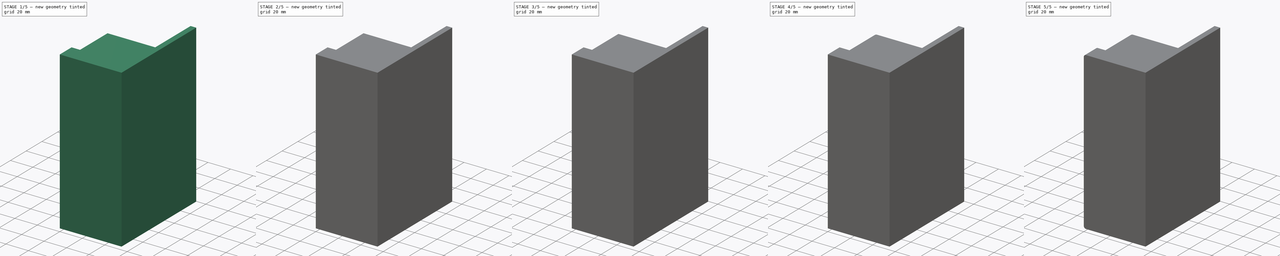
[diagram: build sequence overview — one tinted view per stage of 5, left to right]
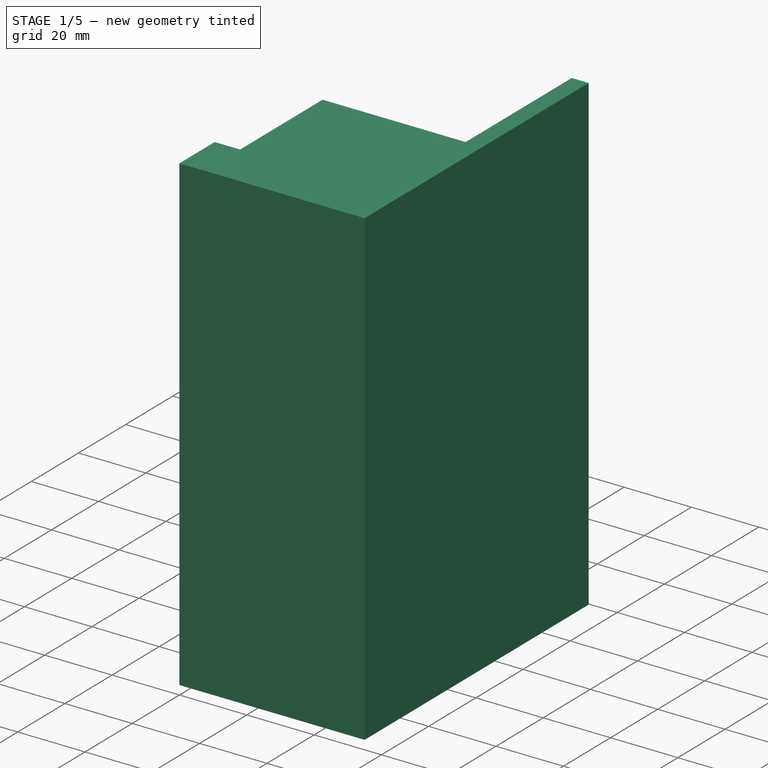
[diagram: stage 1 of 5 — iso view after this stage's code; geometry added in this stage tinted green]
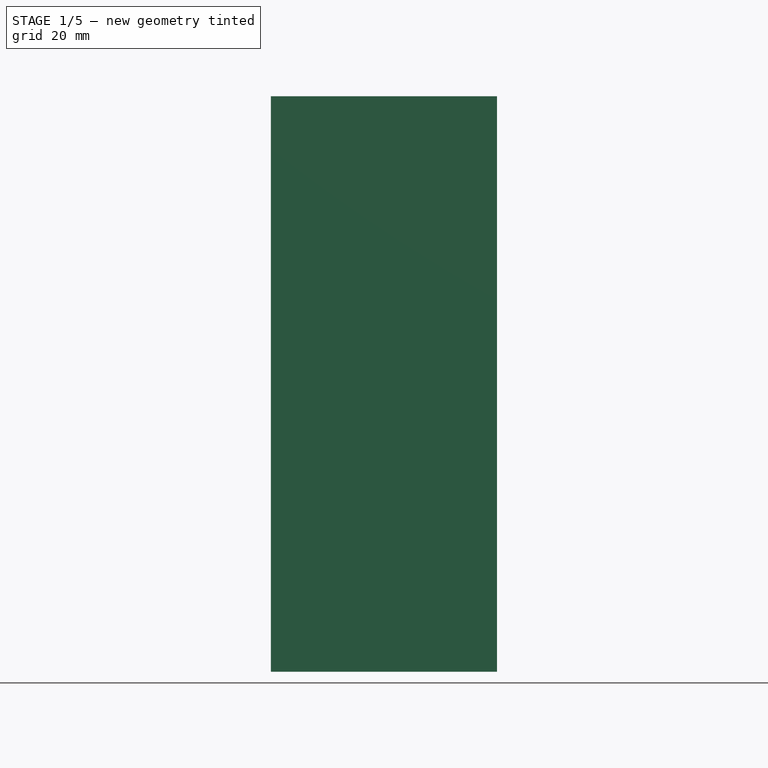
[diagram: stage 1 of 5 — front view after this stage's code; geometry added in this stage tinted green]
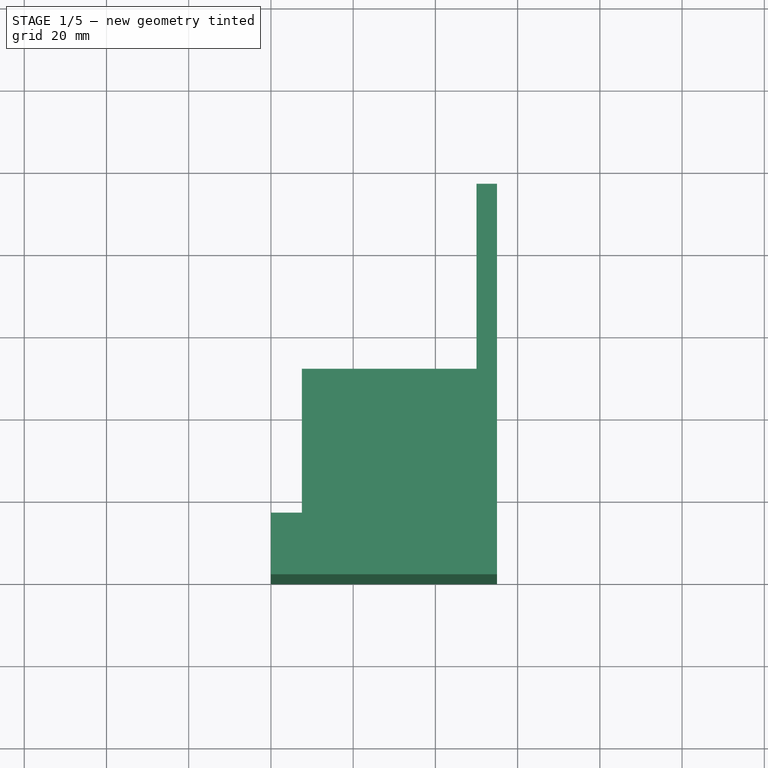
[diagram: stage 1 of 5 — top view after this stage's code; geometry added in this stage tinted green]
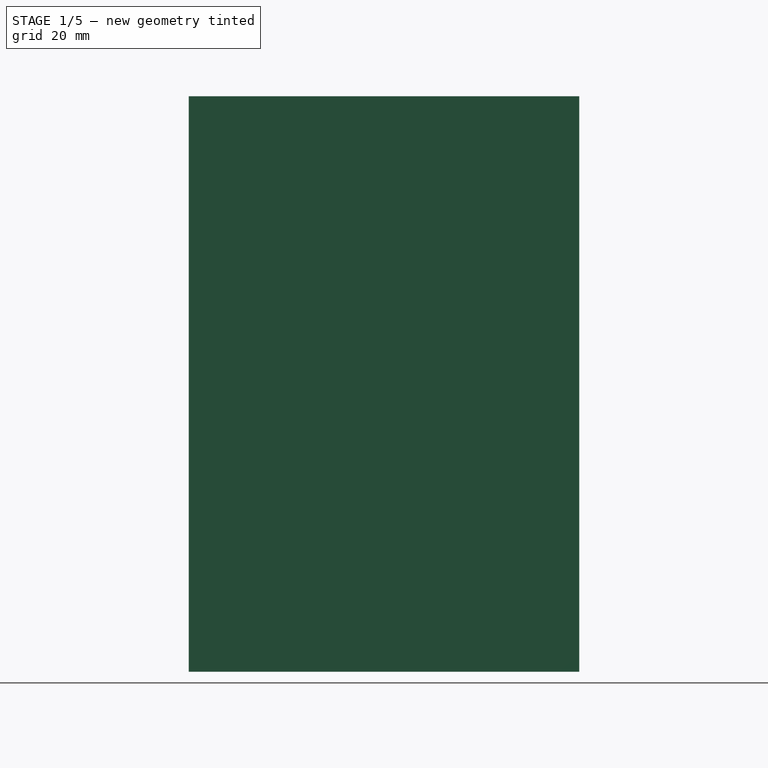
[diagram: stage 1 of 5 — right view after this stage's code; geometry added in this stage tinted green]
FCSTD DOCUMENT  (FreeCAD 0.19R24276 (Git))
Label: PencilCase
License: All rights reserved
LicenseURL: http://en.wikipedia.org/wiki/All_rights_reserved
objects: PartDesign::Fillet×17, Sketcher::SketchObject×6, PartDesign::Pocket×4, PartDesign::Body×2, PartDesign::Chamfer×2, PartDesign::Pad×1, PartDesign::Hole×1
note: 58 computed .brp shape members not serialized (recipe doc carries the construction recipe); baked Part::Feature solids carry a one-line shape summary decoded from their .brp

FEATURE [PartDesign::Body] Body
  Origin = -> Origin
FEATURE [Sketcher::SketchObject] Sketch
  FullyConstrained = true
  MapMode = 5
  Support = -> [XY_Plane001]
  sketch-geometry (6):
    g0: LineSegment StartX=55 StartY=0 StartZ=0 EndX=55 EndY=95 EndZ=0
    g1: LineSegment StartX=55 StartY=95 StartZ=0 EndX=50 EndY=95 EndZ=0
    g2: LineSegment StartX=50 StartY=95 StartZ=0 EndX=50 EndY=50 EndZ=0
    g3: LineSegment StartX=50 StartY=50 StartZ=0 EndX=0 EndY=50 EndZ=0
    g4: LineSegment StartX=0 StartY=50 StartZ=0 EndX=0 EndY=0 EndZ=0
    g5: LineSegment StartX=0 StartY=0 StartZ=0 EndX=55 EndY=0 EndZ=0
  constraints (17):
    c: Vertical(g0)
    c: Coincident(g0,g1)
    c: Horizontal(g1)
    c: Coincident(g1,g2)
    c: Vertical(g2)
    c: Coincident(g2,g3)
    c: Horizontal(g3)
    c: Coincident(g3,g4)
    c: Vertical(g4)
    c: Coincident(g4,g5)
    c: Coincident(g5,g0)
    c: Horizontal(g5)
    c: Distance(g1) = 5
    c: Distance(g0) = 95
    c: Distance(g4) = 50
    c: Distance(g3) = 50
    c: Coincident(g4,g-1)
FEATURE [PartDesign::Pad] Pad
  Direction = (1,1,1)
  Length = 140
  Length2 = 100
  Profile = -> Sketch
  Type = 0
FEATURE [Sketcher::SketchObject] Sketch001
  FullyConstrained = false
  MapMode = 5
  Placement = pos=(0,50,0) rot=(0,0.707107,0.707107;3.14159rad)
  Support = -> [Pad]
  sketch-geometry (4):
    g0: LineSegment StartX=-49.9812 StartY=4.99995 StartZ=0 EndX=-24.9812 EndY=4.99995 EndZ=0
    g1: LineSegment StartX=-24.9812 StartY=4.99995 StartZ=0 EndX=-24.9812 EndY=135 EndZ=0
    g2: LineSegment StartX=-24.9812 StartY=135 StartZ=0 EndX=-49.9812 EndY=135 EndZ=0
    g3: LineSegment StartX=-49.9812 StartY=135 StartZ=0 EndX=-49.9812 EndY=4.99995 EndZ=0
  constraints (10):
    c: Coincident(g0,g1)
    c: Coincident(g1,g2)
    c: Coincident(g2,g3)
    c: Coincident(g3,g0)
    c: Horizontal(g0)
    c: Horizontal(g2)
    c: Vertical(g1)
    c: Vertical(g3)
    c: Distance(g0) = 25
    c: Distance(g3) = 130
FEATURE [PartDesign::Pocket] Pocket
  BaseFeature = -> Pad
  Length = 45
  Length2 = 100
  Profile = -> Sketch001
  Type = 0
FEATURE [Sketcher::SketchObject] Sketch002
  FullyConstrained = false
  MapMode = 5
  Placement = pos=(0,50,0) rot=(0,0.707107,0.707107;3.14159rad)
  Support = -> [Pocket]
  sketch-geometry (4):
    g0: LineSegment StartX=-20.0322 StartY=5.03959 StartZ=0 EndX=-12.0322 EndY=5.03959 EndZ=0
    g1: LineSegment StartX=-12.0322 StartY=5.03959 StartZ=0 EndX=-12.0322 EndY=61.0396 EndZ=0
    g2: LineSegment StartX=-12.0322 StartY=61.0396 StartZ=0 EndX=-20.0322 EndY=61.0396 EndZ=0
    g3: LineSegment StartX=-20.0322 StartY=61.0396 StartZ=0 EndX=-20.0322 EndY=5.03959 EndZ=0
  constraints (10):
    c: Coincident(g0,g1)
    c: Coincident(g1,g2)
    c: Coincident(g2,g3)
    c: Coincident(g3,g0)
    c: Horizontal(g0)
    c: Horizontal(g2)
    c: Vertical(g1)
    c: Vertical(g3)
    c: Distance(g2) = 8
    c: Distance(g3) = 56
FEATURE [PartDesign::Pocket] Pocket001
  BaseFeature = -> Pocket
  Length = 40
  Length2 = 100
  Profile = -> Sketch002
  Type = 0
FEATURE [Sketcher::SketchObject] Sketch003
  FullyConstrained = false
  MapMode = 5
  Placement = pos=(0,50,0) rot=(0,0.707107,0.707107;3.14159rad)
  Support = -> [Pocket001]
  sketch-geometry (4):
    g0: LineSegment StartX=-7.5257 StartY=-5.02903 StartZ=0 EndX=0.474299 EndY=-5.02903 EndZ=0
    g1: LineSegment StartX=0.474299 StartY=-5.02903 StartZ=0 EndX=0.474299 EndY=144.819 EndZ=0
    g2: LineSegment StartX=0.474299 StartY=144.819 StartZ=0 EndX=-7.5257 EndY=144.819 EndZ=0
    g3: LineSegment StartX=-7.5257 StartY=144.819 StartZ=0 EndX=-7.5257 EndY=-5.02903 EndZ=0
  constraints (9):
    c: Coincident(g0,g1)
    c: Coincident(g1,g2)
    c: Coincident(g2,g3)
    c: Coincident(g3,g0)
    c: Horizontal(g0)
    c: Horizontal(g2)
    c: Vertical(g1)
    c: Vertical(g3)
    c: Distance(g2) = 8
FEATURE [PartDesign::Pocket] Pocket002
  BaseFeature = -> Pocket001
  Length = 35
  Length2 = 100
  Profile = -> Sketch003
  Type = 0
FEATURE [Sketcher::SketchObject] Sketch004
  FullyConstrained = false
  MapMode = 5
  Placement = pos=(0,50,0) rot=(0,0.707107,0.707107;3.14159rad)
  Support = -> [Pocket002]
  sketch-geometry (3):
    g0: Circle CenterX=-16.1788 CenterY=80.4931 CenterZ=0 NormalX=0 NormalY=0 NormalZ=1 AngleXU=0 Radius=6
    g1: Circle CenterX=-16.1818 CenterY=100.501 CenterZ=0 NormalX=0 NormalY=0 NormalZ=1 AngleXU=0 Radius=6
    g2: Circle CenterX=-16.1736 CenterY=120.515 CenterZ=0 NormalX=0 NormalY=0 NormalZ=1 AngleXU=0 Radius=6
  constraints (3):
    c: Radius(g0) = 6
    c: Radius(g1) = 6
    c: Radius(g2) = 6
FEATURE [PartDesign::Hole] Hole
  BaseFeature = -> Pocket002
  Depth = 45
  DepthType = 0
  Diameter = 6
  DrillForDepth = false
  DrillPoint = 1
  DrillPointAngle = 118
  HoleCutCountersinkAngle = 90
  HoleCutCustomValues = false
  HoleCutDepth = 0
  HoleCutDiameter = 6.1
  HoleCutType = 0
  ModelActualThread = false
  Profile = -> Sketch004
  Tapered = false
  TaperedAngle = 90
  ThreadAngle = 0
  ThreadClass = 0
  ThreadCutOffInner = 0
  ThreadCutOffOuter = 0
  ThreadDirection = 0
  ThreadFit = 0
  ThreadPitch = 0
  ThreadSize = 0
  ThreadType = 0
  Threaded = false
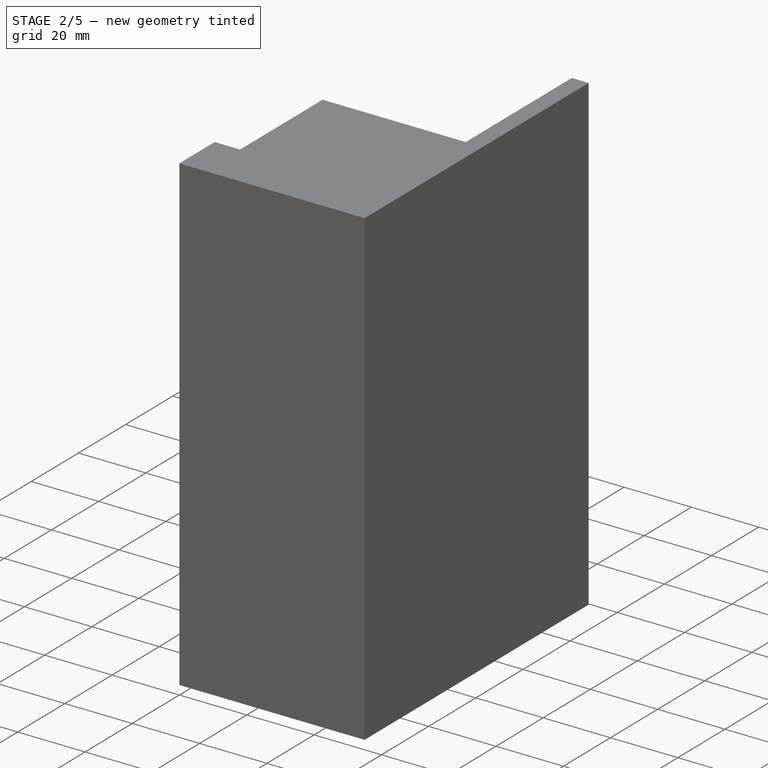
[diagram: stage 2 of 5 — iso view after this stage's code; geometry added in this stage tinted green]
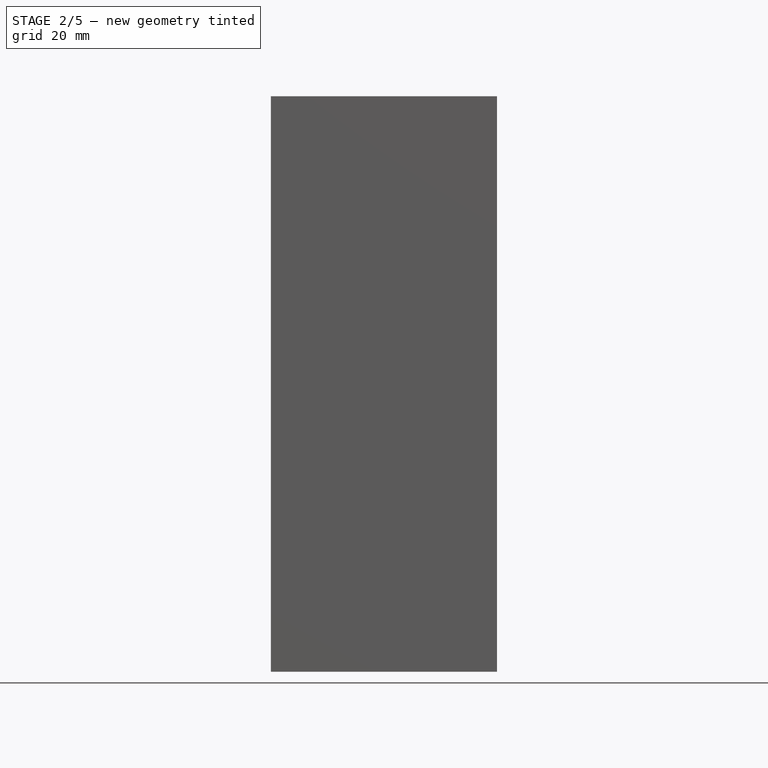
[diagram: stage 2 of 5 — front view after this stage's code; geometry added in this stage tinted green]
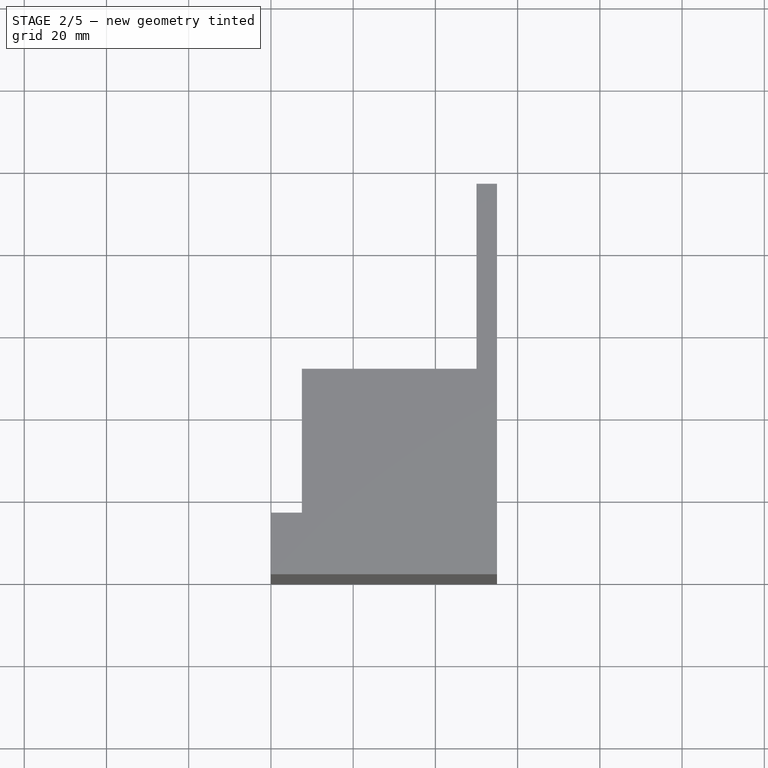
[diagram: stage 2 of 5 — top view after this stage's code; geometry added in this stage tinted green]
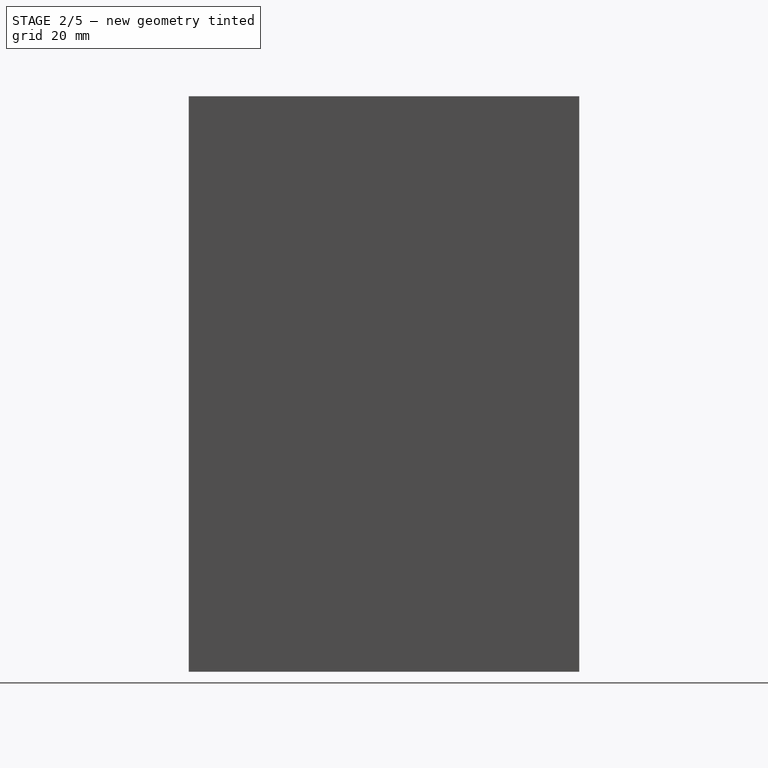
[diagram: stage 2 of 5 — right view after this stage's code; geometry added in this stage tinted green]
FEATURE [Sketcher::SketchObject] Sketch005
  FullyConstrained = false
  MapMode = 5
  Placement = pos=(0,15,-3.6e-15) rot=(0,0.707107,0.707107;3.14159rad)
  Support = -> [Hole]
  sketch-geometry (4):
    g0: LineSegment StartX=-4.75368 StartY=5.02483 StartZ=0 EndX=-2.35368 EndY=5.02483 EndZ=0
    g1: LineSegment StartX=-2.35368 StartY=5.02483 StartZ=0 EndX=-2.35368 EndY=135.025 EndZ=0
    g2: LineSegment StartX=-2.35368 StartY=135.025 StartZ=0 EndX=-4.75368 EndY=135.025 EndZ=0
    g3: LineSegment StartX=-4.75368 StartY=135.025 StartZ=0 EndX=-4.75368 EndY=5.02483 EndZ=0
  constraints (10):
    c: Coincident(g0,g1)
    c: Coincident(g1,g2)
    c: Coincident(g2,g3)
    c: Coincident(g3,g0)
    c: Horizontal(g0)
    c: Horizontal(g2)
    c: Vertical(g1)
    c: Vertical(g3)
    c: Distance(g3) = 130
    c: Distance(g2) = 2.4
FEATURE [PartDesign::Pocket] Pocket003
  BaseFeature = -> Hole
  Length = 10
  Length2 = 100
  Profile = -> Sketch005
  Type = 0
FEATURE [PartDesign::Fillet] Fillet
  Base = -> Pocket003 [Edge31,Edge30,Edge29]
  BaseFeature = -> Pocket003
  Radius = 2
  SupportTransform = false
FEATURE [PartDesign::Fillet] Fillet001
  Base = -> Fillet [Edge10]
  BaseFeature = -> Fillet
  Radius = 2
  SupportTransform = false
FEATURE [PartDesign::Fillet] Fillet002
  Base = -> Fillet001 [Edge4]
  BaseFeature = -> Fillet001
  Radius = 2
  SupportTransform = false
FEATURE [PartDesign::Fillet] Fillet003
  Base = -> Fillet002 [Edge7]
  BaseFeature = -> Fillet002
  Radius = 2
  SupportTransform = false
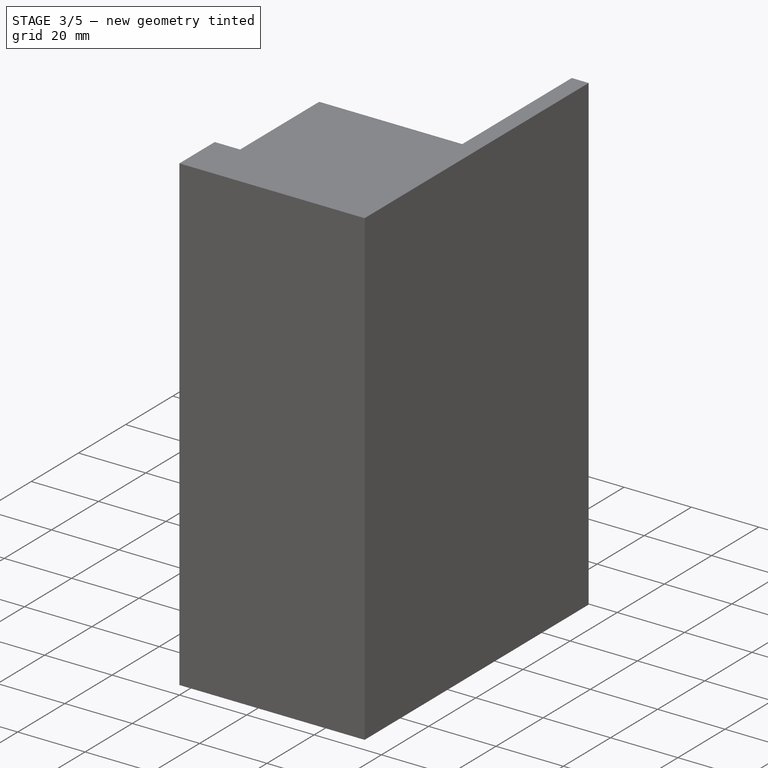
[diagram: stage 3 of 5 — iso view after this stage's code; geometry added in this stage tinted green]
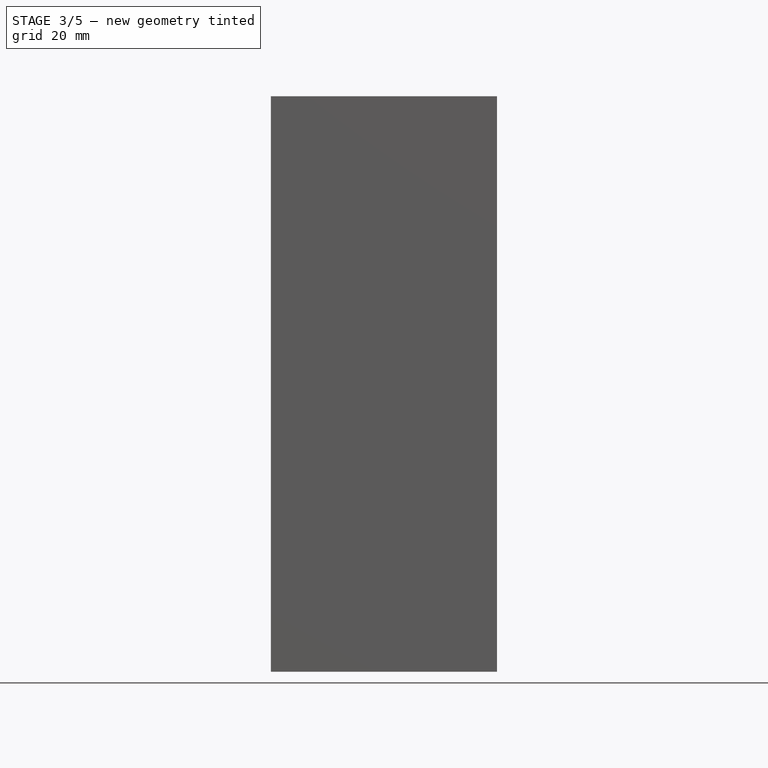
[diagram: stage 3 of 5 — front view after this stage's code; geometry added in this stage tinted green]
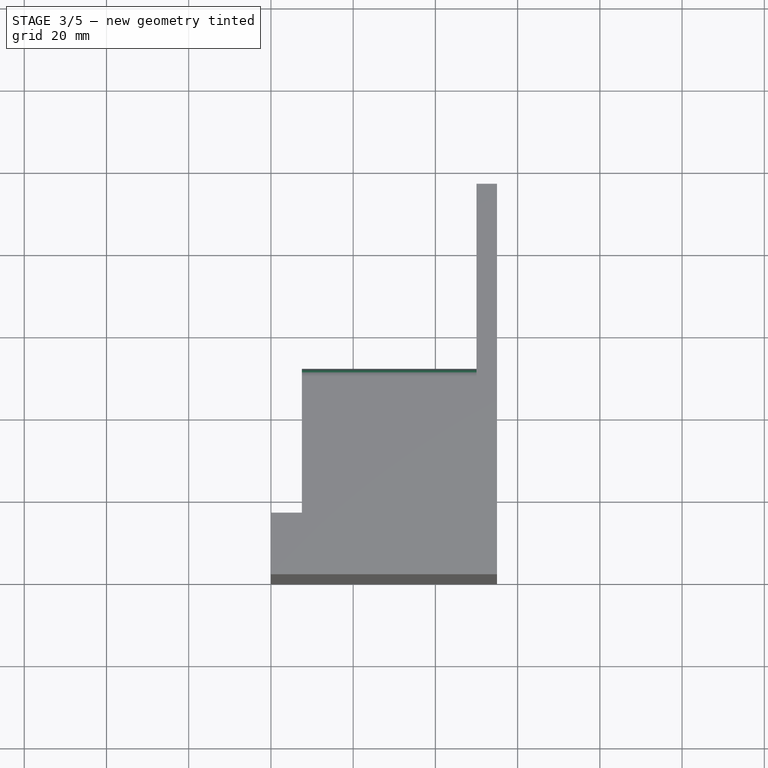
[diagram: stage 3 of 5 — top view after this stage's code; geometry added in this stage tinted green]
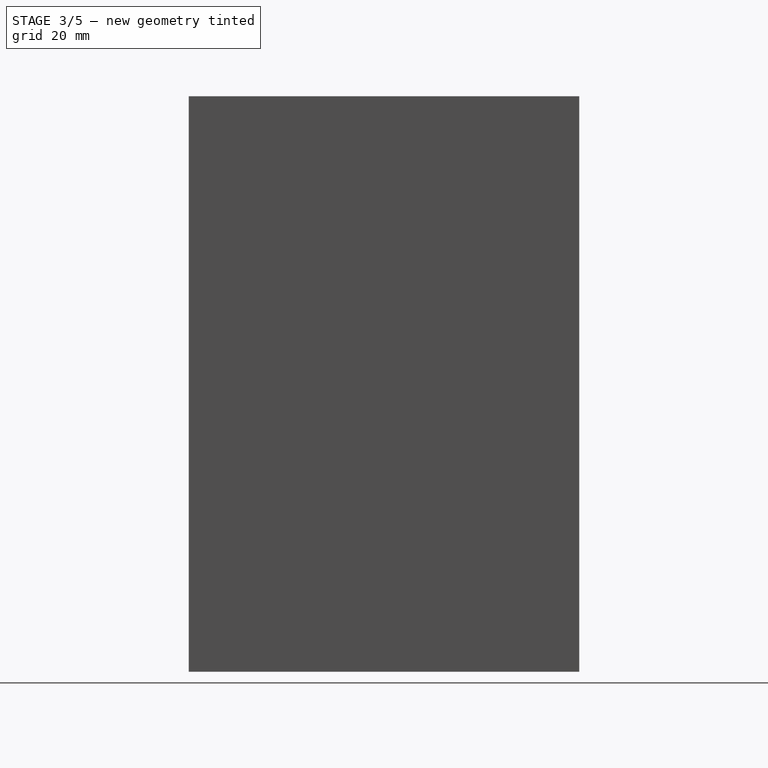
[diagram: stage 3 of 5 — right view after this stage's code; geometry added in this stage tinted green]
FEATURE [PartDesign::Fillet] Fillet004
  Base = -> Fillet003 [Edge6]
  BaseFeature = -> Fillet003
  Radius = 2
  SupportTransform = false
FEATURE [PartDesign::Fillet] Fillet005
  Base = -> Fillet004 [Edge21]
  BaseFeature = -> Fillet004
  Radius = 1
  SupportTransform = false
FEATURE [PartDesign::Fillet] Fillet006
  Base = -> Fillet005 [Edge6]
  BaseFeature = -> Fillet005
  Radius = 2
  SupportTransform = false
FEATURE [PartDesign::Fillet] Fillet007
  Base = -> Fillet006 [Edge5]
  BaseFeature = -> Fillet006
  Radius = 2
  SupportTransform = false
FEATURE [PartDesign::Fillet] Fillet008
  Base = -> Fillet007 [Edge25]
  BaseFeature = -> Fillet007
  Radius = 2
  SupportTransform = false
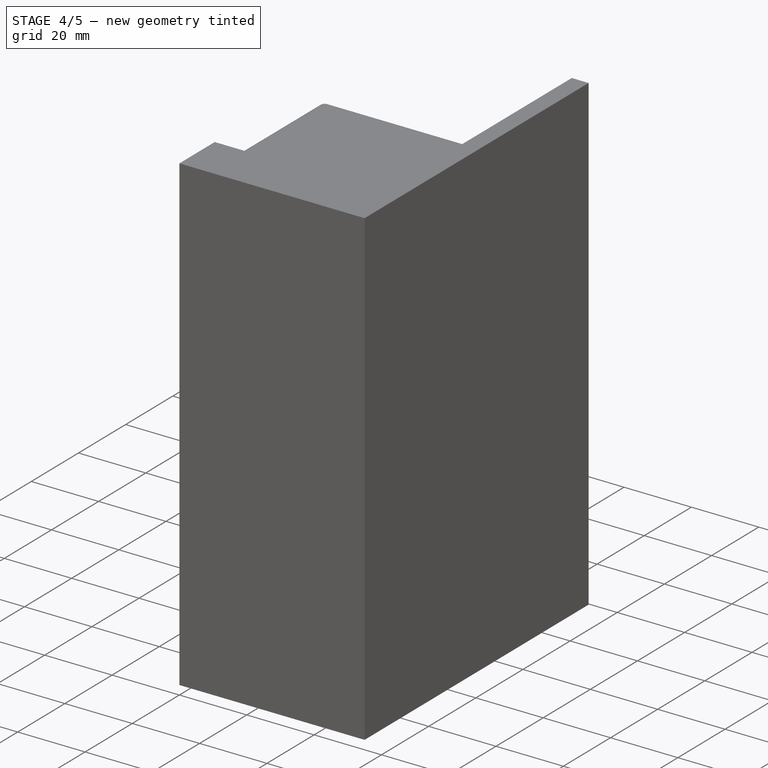
[diagram: stage 4 of 5 — iso view after this stage's code; geometry added in this stage tinted green]
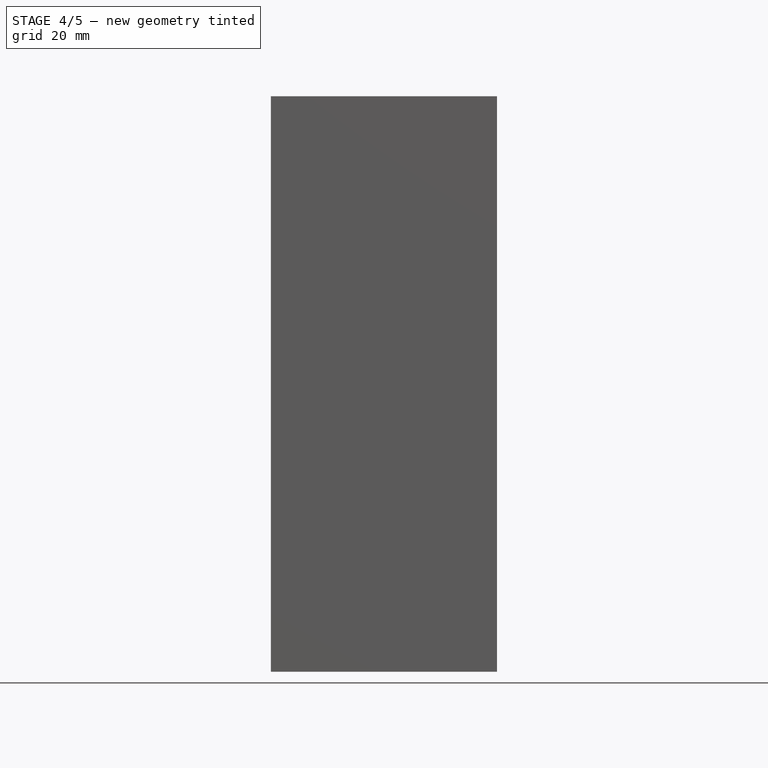
[diagram: stage 4 of 5 — front view after this stage's code; geometry added in this stage tinted green]
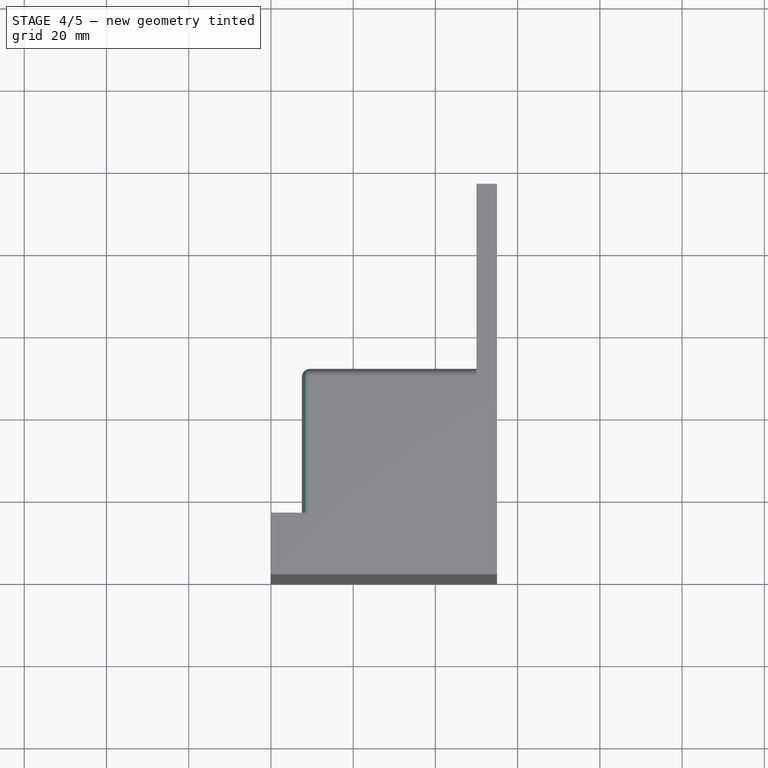
[diagram: stage 4 of 5 — top view after this stage's code; geometry added in this stage tinted green]
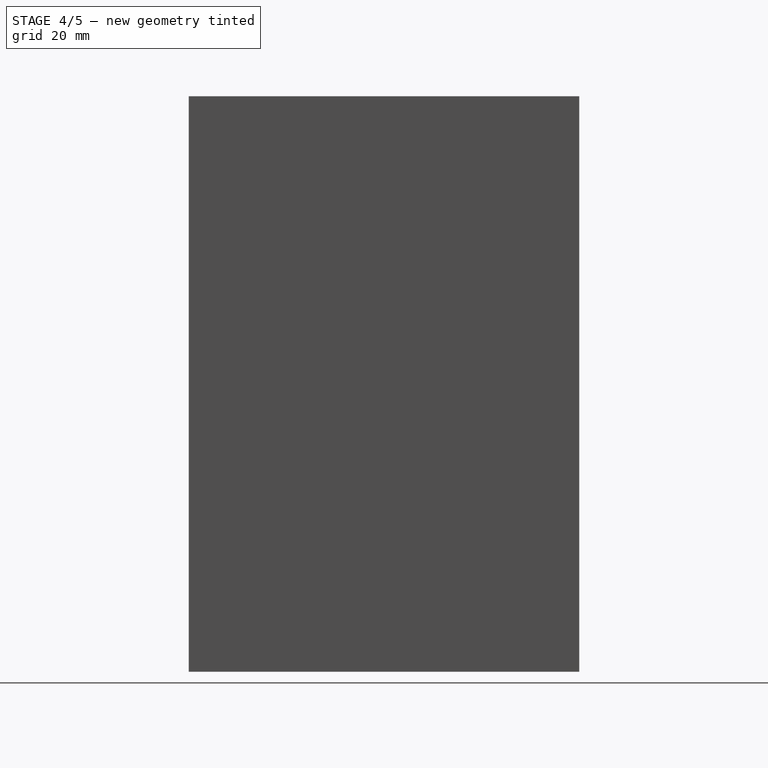
[diagram: stage 4 of 5 — right view after this stage's code; geometry added in this stage tinted green]
FEATURE [PartDesign::Fillet] Fillet009
  Base = -> Fillet008 [Edge1]
  BaseFeature = -> Fillet008
  Radius = 2
  SupportTransform = false
FEATURE [PartDesign::Fillet] Fillet010
  Base = -> Fillet009 [Edge3]
  BaseFeature = -> Fillet009
  Radius = 2
  SupportTransform = false
FEATURE [PartDesign::Chamfer] Chamfer
  Angle = 45
  Base = -> Fillet010 [Edge132]
  BaseFeature = -> Fillet010
  ChamferType = 0
  FlipDirection = false
  Size = 5
  Size2 = 1
  SupportTransform = false
FEATURE [PartDesign::Chamfer] Chamfer001
  Angle = 45
  Base = -> Chamfer [Edge23]
  BaseFeature = -> Chamfer
  ChamferType = 0
  FlipDirection = false
  Size = 5
  Size2 = 1
  SupportTransform = false
FEATURE [PartDesign::Fillet] Fillet011
  Base = -> Chamfer001 [Edge15]
  BaseFeature = -> Chamfer001
  Radius = 2
  SupportTransform = false
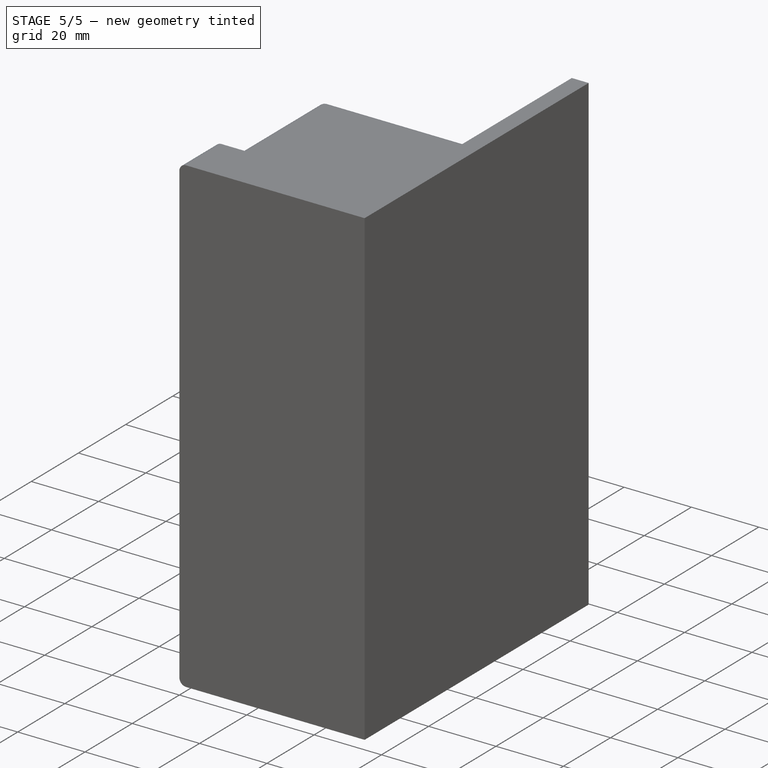
[diagram: stage 5 of 5 — iso view after this stage's code; geometry added in this stage tinted green]
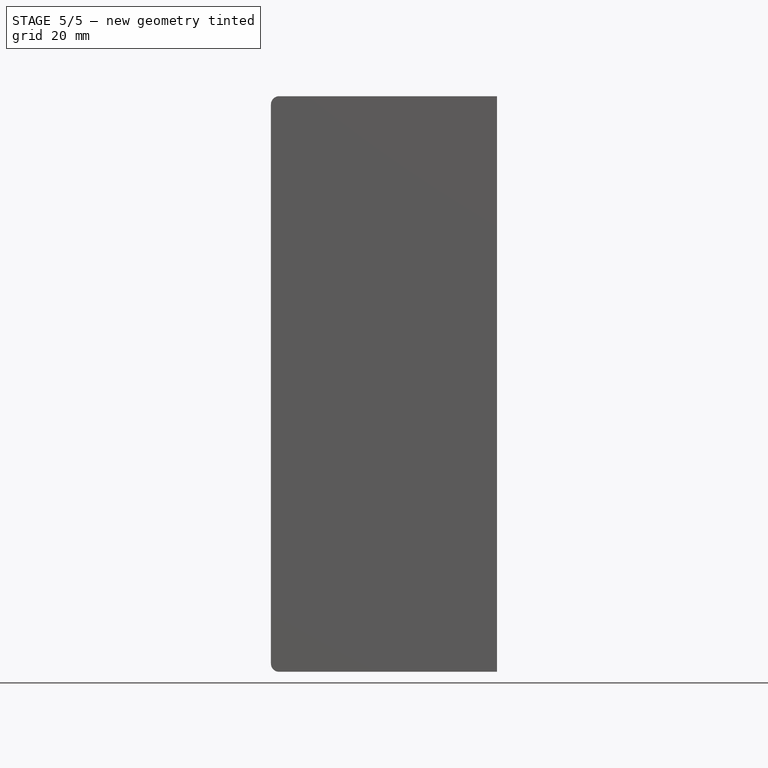
[diagram: stage 5 of 5 — front view after this stage's code; geometry added in this stage tinted green]
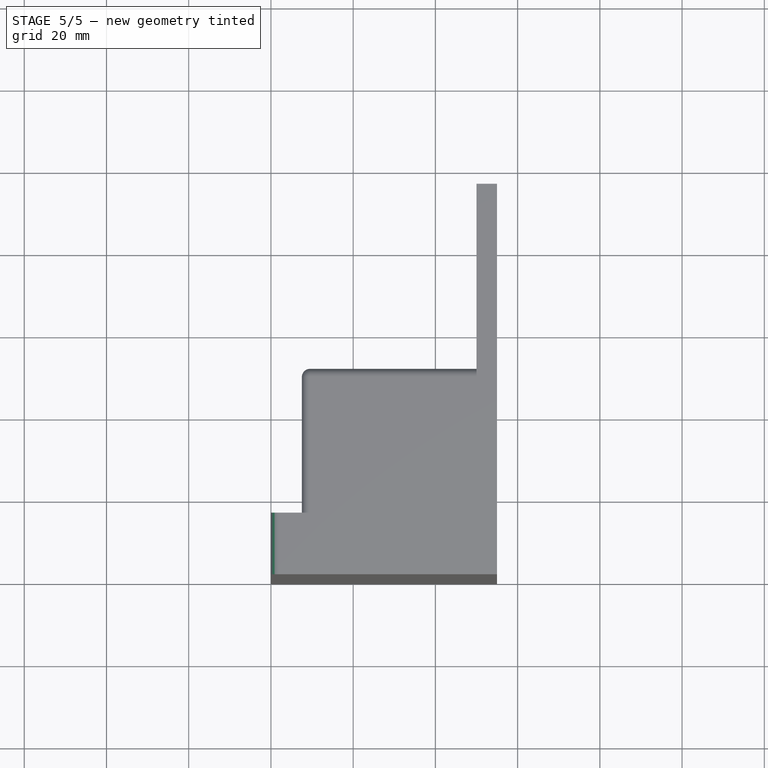
[diagram: stage 5 of 5 — top view after this stage's code; geometry added in this stage tinted green]
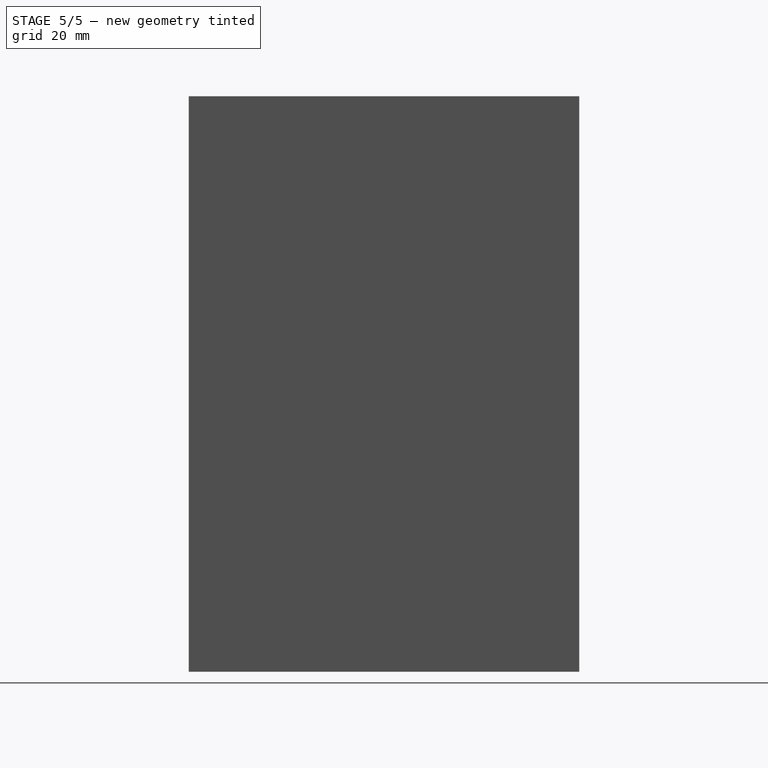
[diagram: stage 5 of 5 — right view after this stage's code; geometry added in this stage tinted green]
FEATURE [PartDesign::Fillet] Fillet012
  Base = -> Fillet011 [Edge18]
  BaseFeature = -> Fillet011
  Radius = 2
  SupportTransform = false
FEATURE [PartDesign::Fillet] Fillet013
  Base = -> Fillet012 [Edge6]
  BaseFeature = -> Fillet012
  Radius = 2
  SupportTransform = false
FEATURE [PartDesign::Fillet] Fillet014
  Base = -> Fillet013 [Edge26]
  BaseFeature = -> Fillet013
  Radius = 2
  SupportTransform = false
FEATURE [PartDesign::Fillet] Fillet015
  Base = -> Fillet014 [Edge46]
  BaseFeature = -> Fillet014
  Radius = 2
  SupportTransform = false
FEATURE [PartDesign::Fillet] Fillet016
  Base = -> Fillet015 [Edge33]
  BaseFeature = -> Fillet015
  Radius = 2
  SupportTransform = false
FEATURE [PartDesign::Body] Body001
  Group = -> [Sketch,Pad,Sketch001,Pocket,Sketch002,Pocket001,Sketch003,Pocket002,Sketch004,Hole,Sketch005,Pocket003,Fillet,Fillet001,Fillet002,Fillet003,Fillet004,Fillet005,Fillet006,Fillet007,Fillet008,Fillet009,Fillet010,Chamfer,Chamfer001,Fillet011,Fillet012,Fillet013,Fillet014,Fillet015,Fillet016]
  Origin = -> Origin001
  Tip = -> Fillet016
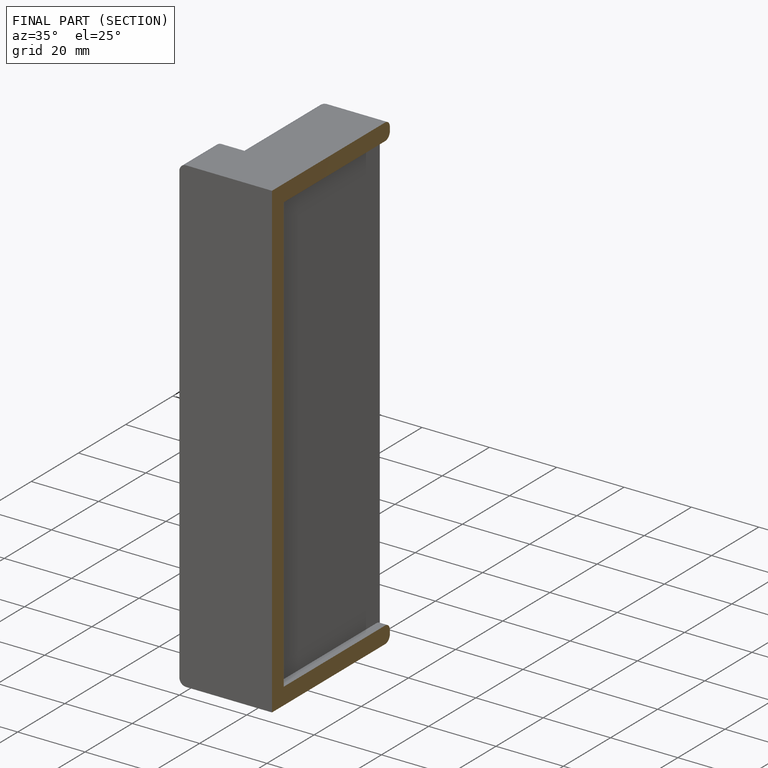
[diagram: finished part — half-section view (interior)]
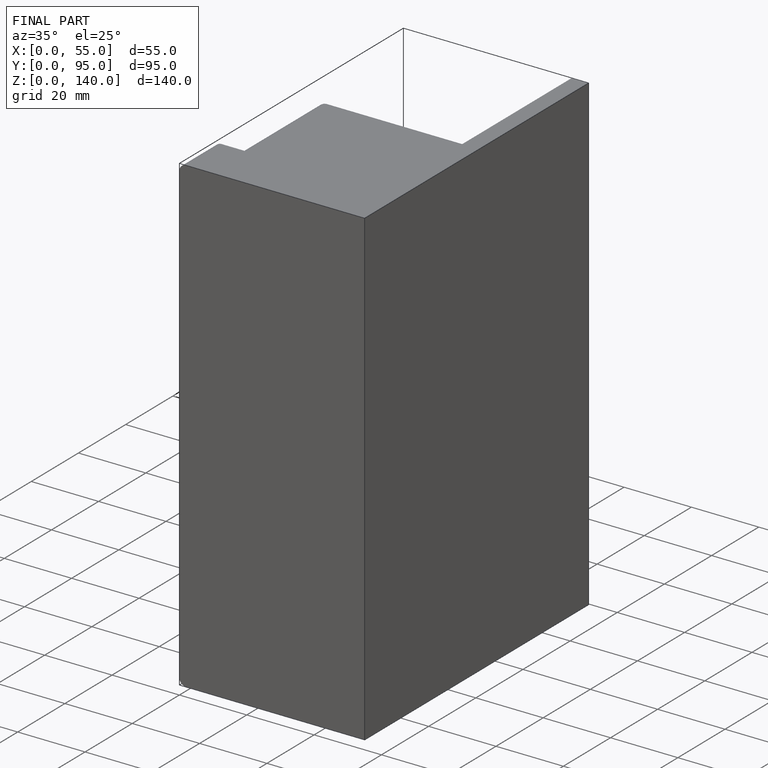
[diagram: finished part — iso view with bounding-box wireframe]
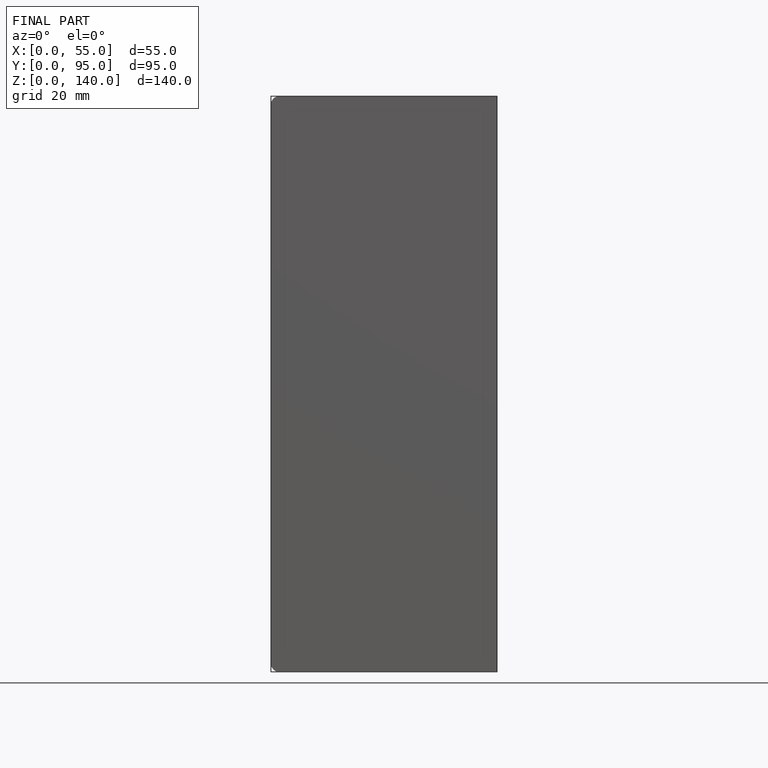
[diagram: finished part — front view with bounding-box wireframe]
